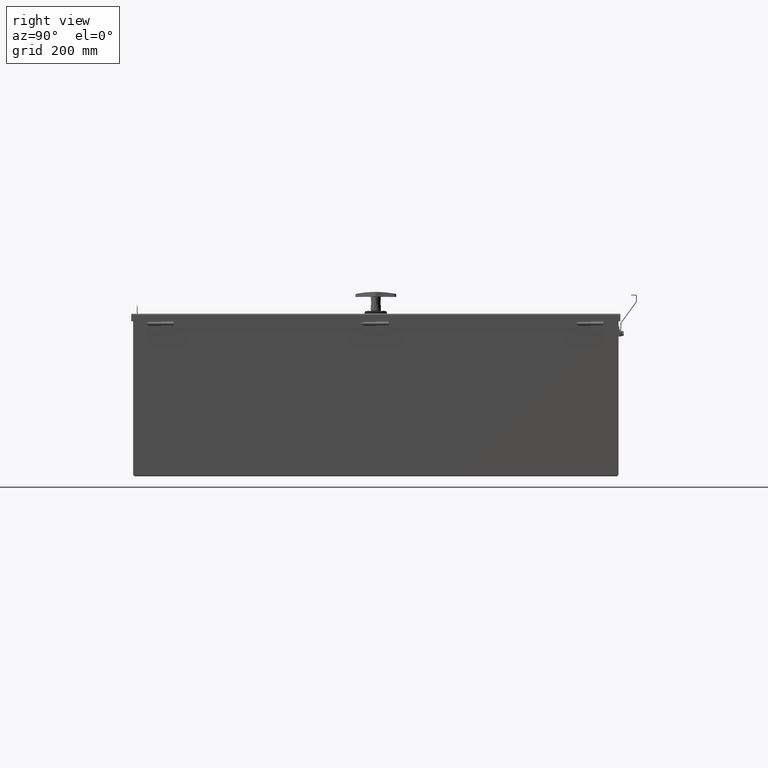
[diagram: clean part render]
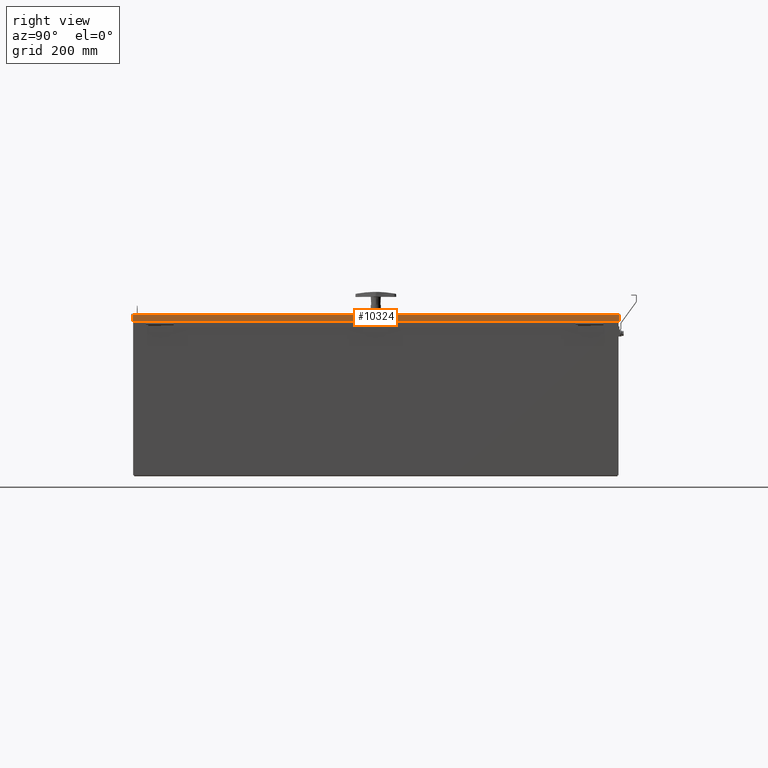
[diagram: same view with one face highlighted and labeled with its STEP entity id]
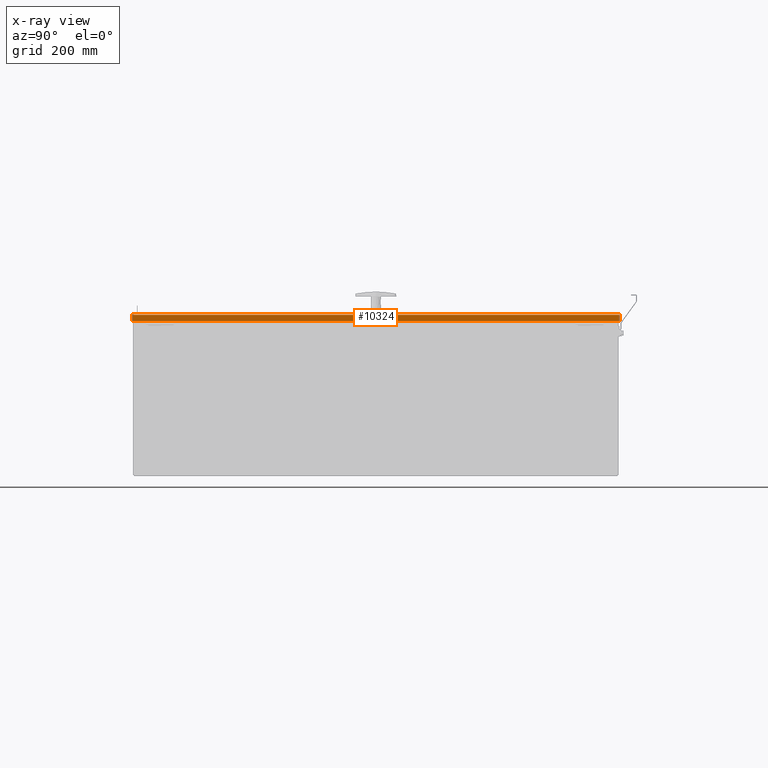
[diagram: x-ray of the same camera — body ghosted, the highlighted face saturated]
A machine part, right view. The second image highlights one B-rep face of the part: STEP entity #10324.
The next image is the same camera in x-ray: the body ghosted, the highlighted face saturated — about 0% of this face is hidden behind the body in this view.
In plain terms, the highlighted planar face has unit normal (1, 0, 0).
Its self-contained STEP definition (entity closure, byte-faithful):
#953=PLANE($,#11117);
#1388=FACE_OUTER_BOUND($,#2036,.T.);
#2036=EDGE_LOOP($,(#7660,#7661,#7662,#7663));
#3332=LINE($,#15841,#4128);
#3338=LINE($,#15868,#4134);
#3342=LINE($,#15928,#4138);
#3344=LINE($,#15931,#4140);
#4128=VECTOR($,#12746,48.1655029130879);
#4134=VECTOR($,#12756,0.62505);
#4138=VECTOR($,#12762,0.62505);
#4140=VECTOR($,#12766,48.1655029130879);
#4889=VERTEX_POINT($,#15839);
#4890=VERTEX_POINT($,#15840);
#4895=VERTEX_POINT($,#15867);
#4896=VERTEX_POINT($,#15927);
#5917=EDGE_CURVE($,#4889,#4890,#3332,.T.);
#5925=EDGE_CURVE($,#4895,#4890,#3338,.T.);
#5931=EDGE_CURVE($,#4889,#4896,#3342,.T.);
#5933=EDGE_CURVE($,#4896,#4895,#3344,.T.);
#7660=ORIENTED_EDGE($,*,*,#5917,.T.);
#7661=ORIENTED_EDGE($,*,*,#5925,.F.);
#7662=ORIENTED_EDGE($,*,*,#5933,.F.);
#7663=ORIENTED_EDGE($,*,*,#5931,.F.);
#10324=ADVANCED_FACE($,(#1388),#953,.T.);
#11117=AXIS2_PLACEMENT_3D($,#15932,#12767,#12768);
#12746=DIRECTION($,(5.77915818586269E-017,-1.,8.30593744436389E-034));
#12756=DIRECTION($,(2.30314065722459E-014,1.33120277756046E-030,1.));
#12762=DIRECTION($,(-2.30314065722459E-014,-1.33120277756046E-030,-1.));
#12766=DIRECTION($,(5.78276453852639E-017,-1.,-5.83306910307372E-017));
#12767=DIRECTION('center_axis',(1.,5.77915818586269E-017,-2.30242135527623E-014));
#12768=DIRECTION('ref_axis',(-2.25597318603832E-014,-5.78276453852667E-017,
-1.));
#15839=CARTESIAN_POINT('',(12.109375,24.082751456544,-0.0312499999999995));
#15840=CARTESIAN_POINT('',(12.109375,-24.082751456544,-0.0312500000000037));
#15841=CARTESIAN_POINT($,(12.109375,-1.90432361627282E-015,-0.0312500000000037));
#15867=CARTESIAN_POINT('',(12.109375,-24.082751456544,-0.656300000000006));
#15868=CARTESIAN_POINT($,(12.109375,-24.082751456544,-0.0312500000000037));
#15927=CARTESIAN_POINT('',(12.109375,24.082751456544,-0.6563));
#15928=CARTESIAN_POINT($,(12.109375,24.082751456544,-0.0312499999999995));
#15931=CARTESIAN_POINT($,(12.109375,24.082751456544,-0.6563));
#15932=CARTESIAN_POINT('Origin',(12.109375,-1.01845775813983E-015,-0.304421465270816));